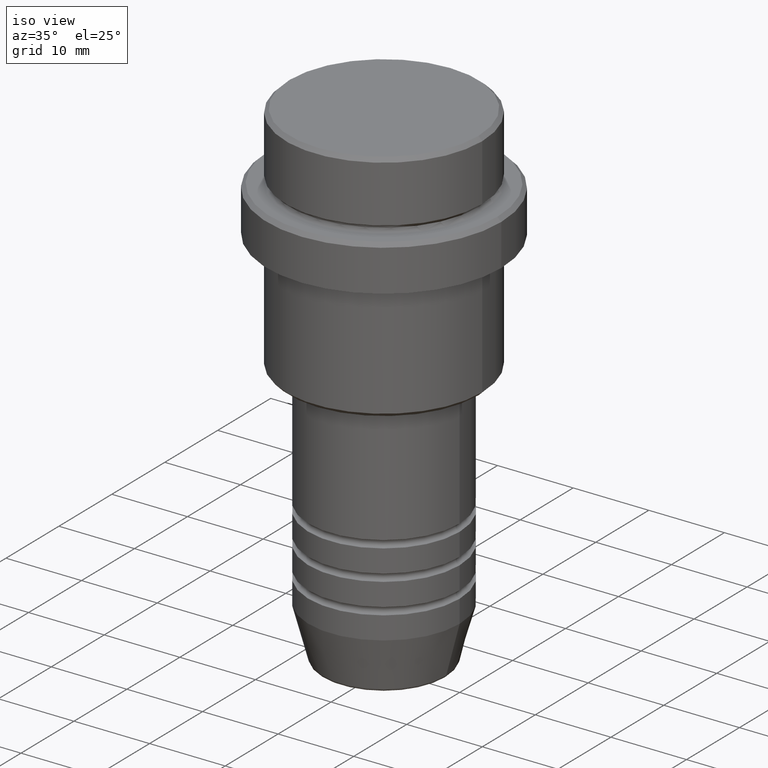
[diagram: clean part render]
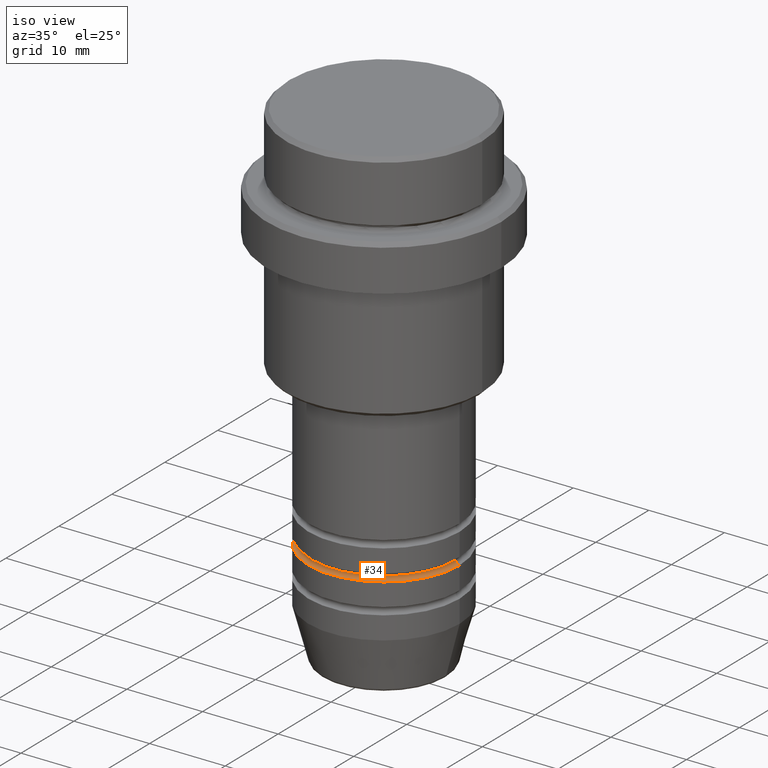
[diagram: same view with one face highlighted and labeled with its STEP entity id]
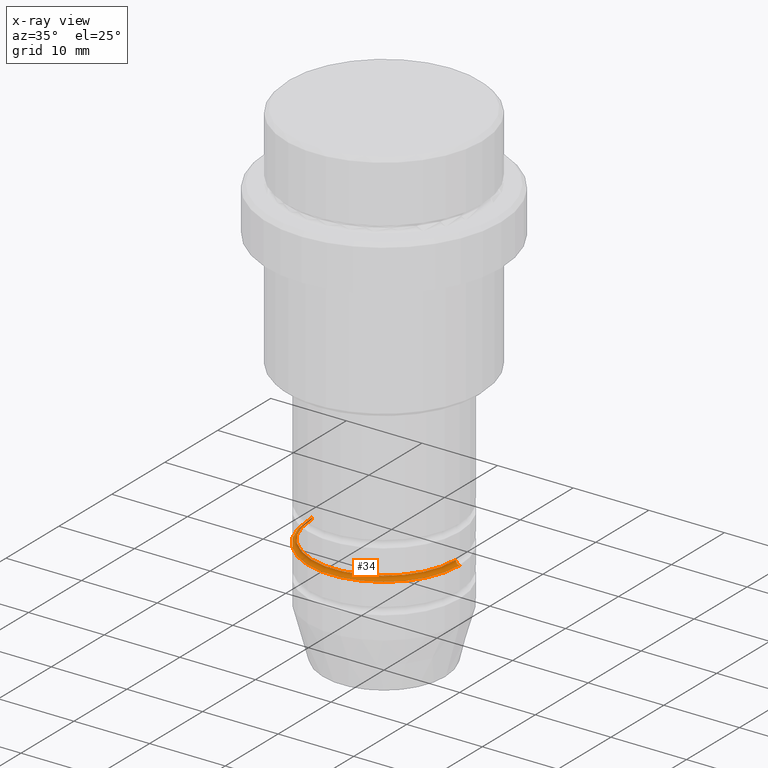
[diagram: x-ray of the same camera — body ghosted, the highlighted face saturated]
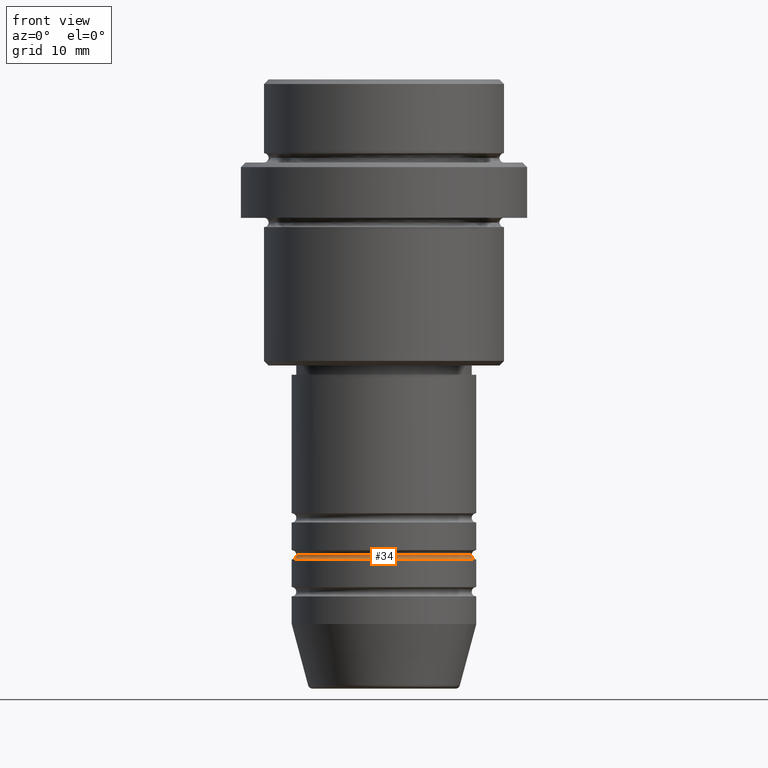
[diagram: same view with one face highlighted and labeled with its STEP entity id]
A machine part, iso view. The second image highlights one B-rep face of the part: STEP entity #34.
The next image is the same camera in x-ray: the body ghosted, the highlighted face saturated — about 2% of this face is hidden behind the body in this view.
A second angle (front view) of the same face is appended — the face is thin or edge-on in the first view.
In plain terms, the highlighted toroidal blend (fillet) surface has major radius 10 mm and minor (blend) radius 0.5 mm.
Its self-contained STEP definition (entity closure, byte-faithful):
#34 = ADVANCED_FACE ( 'NONE', ( #371 ), #878, .F. ) ;
#101 = DIRECTION ( 'NONE',  ( -1.000000000000000000, 1.224646799147353454E-16, 0.000000000000000000 ) ) ;
#143 = CARTESIAN_POINT ( 'NONE',  ( 9.499999999999991118, 0.000000000000000000, -51.49999999999989342 ) ) ;
#160 = CARTESIAN_POINT ( 'NONE',  ( 10.00000000000000000, 0.000000000000000000, -51.99999999999989342 ) ) ;
#189 = AXIS2_PLACEMENT_3D ( 'NONE', #1333, #471, #1227 ) ;
#197 = ORIENTED_EDGE ( 'NONE', *, *, #708, .T. ) ;
#235 = VERTEX_POINT ( 'NONE', #1104 ) ;
#283 = AXIS2_PLACEMENT_3D ( 'NONE', #333, #1097, #312 ) ;
#312 = DIRECTION ( 'NONE',  ( 1.000000000000000000, 0.000000000000000000, 0.000000000000000000 ) ) ;
#333 = CARTESIAN_POINT ( 'NONE',  ( 0.000000000000000000, 0.000000000000000000, -51.49999999999989342 ) ) ;
#351 = CIRCLE ( 'NONE', #975, 0.5000000000000004441 ) ;
#353 = CIRCLE ( 'NONE', #283, 9.499999999999991118 ) ;
#371 = FACE_OUTER_BOUND ( 'NONE', #897, .T. ) ;
#418 = CIRCLE ( 'NONE', #189, 10.00000000000000000 ) ;
#448 = ORIENTED_EDGE ( 'NONE', *, *, #851, .F. ) ;
#470 = EDGE_CURVE ( 'NONE', #235, #473, #418, .T. ) ;
#471 = DIRECTION ( 'NONE',  ( -0.000000000000000000, -0.000000000000000000, 1.000000000000000000 ) ) ;
#473 = VERTEX_POINT ( 'NONE', #160 ) ;
#526 = CARTESIAN_POINT ( 'NONE',  ( -9.999999999999991118, 1.224646799147352270E-15, -51.49999999999989342 ) ) ;
#695 = ORIENTED_EDGE ( 'NONE', *, *, #702, .F. ) ;
#702 = EDGE_CURVE ( 'NONE', #1344, #1256, #353, .T. ) ;
#708 = EDGE_CURVE ( 'NONE', #1344, #235, #351, .T. ) ;
#744 = CIRCLE ( 'NONE', #1337, 0.5000000000000004441 ) ;
#787 = CARTESIAN_POINT ( 'NONE',  ( 9.999999999999991118, 0.000000000000000000, -51.49999999999989342 ) ) ;
#812 = DIRECTION ( 'NONE',  ( 0.000000000000000000, -1.000000000000000000, 0.000000000000000000 ) ) ;
#817 = CARTESIAN_POINT ( 'NONE',  ( 0.000000000000000000, 0.000000000000000000, -51.49999999999989342 ) ) ;
#824 = DIRECTION ( 'NONE',  ( 1.000000000000000000, 0.000000000000000000, 0.000000000000000000 ) ) ;
#833 = ORIENTED_EDGE ( 'NONE', *, *, #470, .T. ) ;
#851 = EDGE_CURVE ( 'NONE', #1256, #473, #744, .T. ) ;
#859 = DIRECTION ( 'NONE',  ( 1.224646799147353207E-16, 1.000000000000000000, 0.000000000000000000 ) ) ;
#878 = TOROIDAL_SURFACE ( 'NONE', #1175, 9.999999999999991118, 0.5000000000000000000 ) ;
#897 = EDGE_LOOP ( 'NONE', ( #695, #197, #833, #448 ) ) ;
#975 = AXIS2_PLACEMENT_3D ( 'NONE', #526, #859, #101 ) ;
#1097 = DIRECTION ( 'NONE',  ( -0.000000000000000000, -0.000000000000000000, 1.000000000000000000 ) ) ;
#1104 = CARTESIAN_POINT ( 'NONE',  ( -10.00000000000000000, 1.224646799147353256E-15, -51.99999999999989342 ) ) ;
#1175 = AXIS2_PLACEMENT_3D ( 'NONE', #817, #1252, #824 ) ;
#1227 = DIRECTION ( 'NONE',  ( 1.000000000000000000, 0.000000000000000000, 0.000000000000000000 ) ) ;
#1252 = DIRECTION ( 'NONE',  ( -0.000000000000000000, -0.000000000000000000, 1.000000000000000000 ) ) ;
#1256 = VERTEX_POINT ( 'NONE', #143 ) ;
#1324 = DIRECTION ( 'NONE',  ( 0.000000000000000000, 0.000000000000000000, -1.000000000000000000 ) ) ;
#1333 = CARTESIAN_POINT ( 'NONE',  ( 0.000000000000000000, 0.000000000000000000, -51.99999999999989342 ) ) ;
#1335 = CARTESIAN_POINT ( 'NONE',  ( -9.499999999999991118, 1.194030629168668878E-15, -51.49999999999989342 ) ) ;
#1337 = AXIS2_PLACEMENT_3D ( 'NONE', #787, #812, #1324 ) ;
#1344 = VERTEX_POINT ( 'NONE', #1335 ) ;